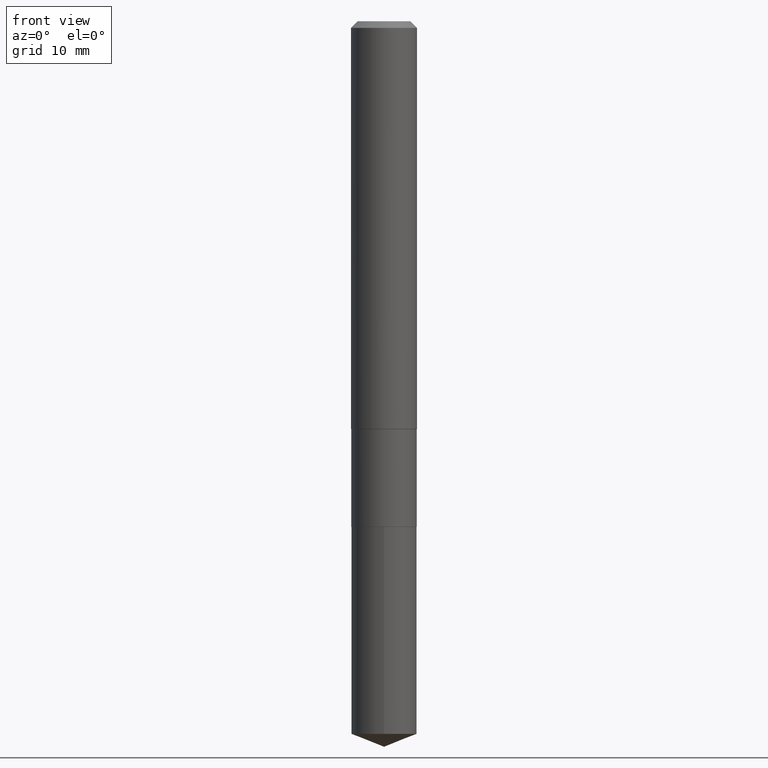
[diagram: clean part render]
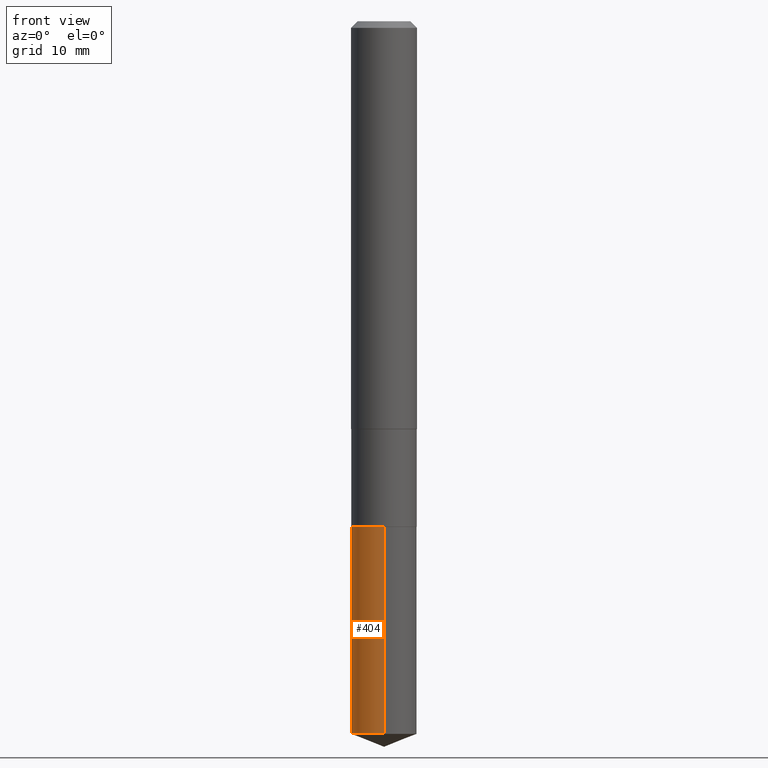
[diagram: same view with one face highlighted and labeled with its STEP entity id]
A machine part, front view. The second image highlights one B-rep face of the part: STEP entity #404.
In plain terms, the highlighted cylindrical surface (edge-blend (fillet) strip) has radius 2.9769 mm, axis along (-0, 0, 1).
Its self-contained STEP definition (entity closure, byte-faithful):
#6 = CARTESIAN_POINT ( 'NONE',  ( -8.184032258247679381E-16, -0.1172000000000088804, -2.552233692257928510 ) ) ;
#24 = DIRECTION ( 'NONE',  ( -6.982962677686265922E-15, -1.000000000000000000, 2.330928322239132474E-15 ) ) ;
#26 = LINE ( 'NONE', #478, #310 ) ;
#55 = EDGE_CURVE ( 'NONE', #340, #325, #92, .T. ) ;
#68 = CYLINDRICAL_SURFACE ( 'NONE', #82, 0.1171999999999999986 ) ;
#80 = ORIENTED_EDGE ( 'NONE', *, *, #476, .F. ) ;
#82 = AXIS2_PLACEMENT_3D ( 'NONE', #461, #207, #210 ) ;
#92 = CIRCLE ( 'NONE', #416, 0.1171999999999999986 ) ;
#100 = CIRCLE ( 'NONE', #139, 0.1171999999999999986 ) ;
#139 = AXIS2_PLACEMENT_3D ( 'NONE', #320, #285, #24 ) ;
#145 = VECTOR ( 'NONE', #147, 39.37007874015748143 ) ;
#147 = DIRECTION ( 'NONE',  ( -2.445866323305287994E-29, 3.490912071701818882E-15, 1.000000000000000000 ) ) ;
#158 = CARTESIAN_POINT ( 'NONE',  ( -8.184032258247860819E-16, -0.1172000000000063130, -1.810999999999999721 ) ) ;
#207 = DIRECTION ( 'NONE',  ( -2.445866323305288275E-29, 3.490912071701818882E-15, 1.000000000000000000 ) ) ;
#210 = DIRECTION ( 'NONE',  ( -6.982962677686265922E-15, -1.000000000000000000, 2.330928322239132474E-15 ) ) ;
#247 = LINE ( 'NONE', #484, #145 ) ;
#254 = VERTEX_POINT ( 'NONE', #418 ) ;
#275 = DIRECTION ( 'NONE',  ( -2.445866323305288275E-29, 3.490912071701818882E-15, 1.000000000000000000 ) ) ;
#281 = DIRECTION ( 'NONE',  ( -2.445866323305287994E-29, 3.490912071701818882E-15, 1.000000000000000000 ) ) ;
#285 = DIRECTION ( 'NONE',  ( -2.445866323305288275E-29, 3.490912071701818882E-15, 1.000000000000000000 ) ) ;
#292 = ORIENTED_EDGE ( 'NONE', *, *, #55, .T. ) ;
#305 = EDGE_LOOP ( 'NONE', ( #80, #292, #355, #331 ) ) ;
#310 = VECTOR ( 'NONE', #281, 39.37007874015748143 ) ;
#320 = CARTESIAN_POINT ( 'NONE',  ( 4.428744008001282238E-29, -6.323072704644935995E-15, -1.810999999999999943 ) ) ;
#325 = VERTEX_POINT ( 'NONE', #6 ) ;
#331 = ORIENTED_EDGE ( 'NONE', *, *, #361, .F. ) ;
#340 = VERTEX_POINT ( 'NONE', #458 ) ;
#349 = EDGE_CURVE ( 'NONE', #325, #374, #247, .T. ) ;
#355 = ORIENTED_EDGE ( 'NONE', *, *, #349, .T. ) ;
#361 = EDGE_CURVE ( 'NONE', #254, #374, #100, .T. ) ;
#373 = FACE_OUTER_BOUND ( 'NONE', #305, .T. ) ;
#374 = VERTEX_POINT ( 'NONE', #158 ) ;
#404 = ADVANCED_FACE ( 'NONE', ( #373 ), #68, .T. ) ;
#416 = AXIS2_PLACEMENT_3D ( 'NONE', #426, #275, #457 ) ;
#418 = CARTESIAN_POINT ( 'NONE',  ( 8.327560863108999253E-16, 0.1171999999999936842, -1.811000000000000165 ) ) ;
#426 = CARTESIAN_POINT ( 'NONE',  ( 6.241702533594187393E-29, -8.910654348900252712E-15, -2.552233692257928954 ) ) ;
#457 = DIRECTION ( 'NONE',  ( -6.982962677686265922E-15, -1.000000000000000000, 4.661856644478264948E-15 ) ) ;
#458 = CARTESIAN_POINT ( 'NONE',  ( 8.327560863108995309E-16, 0.1171999999999910891, -2.552233692257929398 ) ) ;
#461 = CARTESIAN_POINT ( 'NONE',  ( 4.428744008001282238E-29, -6.323072704644935995E-15, -1.810999999999999943 ) ) ;
#476 = EDGE_CURVE ( 'NONE', #340, #254, #26, .T. ) ;
#478 = CARTESIAN_POINT ( 'NONE',  ( 8.327560863108815843E-16, 0.1171999999999936842, -1.811000000000000165 ) ) ;
#484 = CARTESIAN_POINT ( 'NONE',  ( -8.184032258247860819E-16, -0.1172000000000063130, -1.810999999999999721 ) ) ;